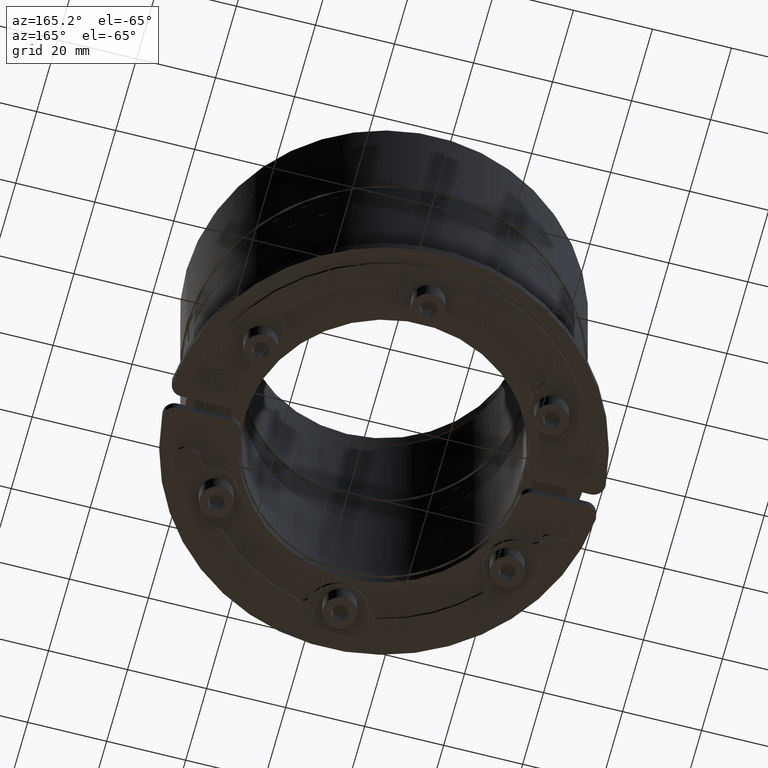
[diagram: clean part render]
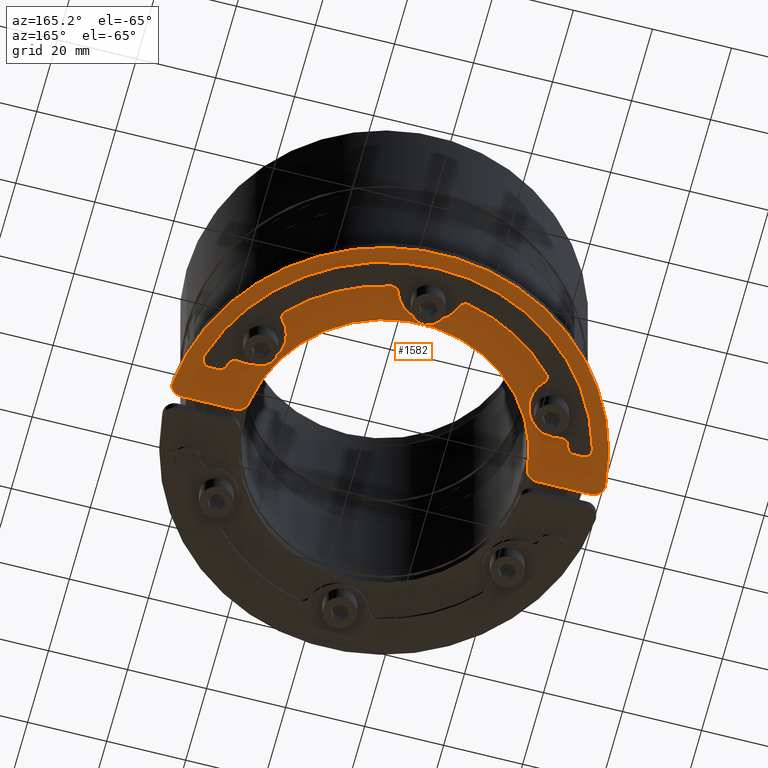
[diagram: same view with one face highlighted and labeled with its STEP entity id]
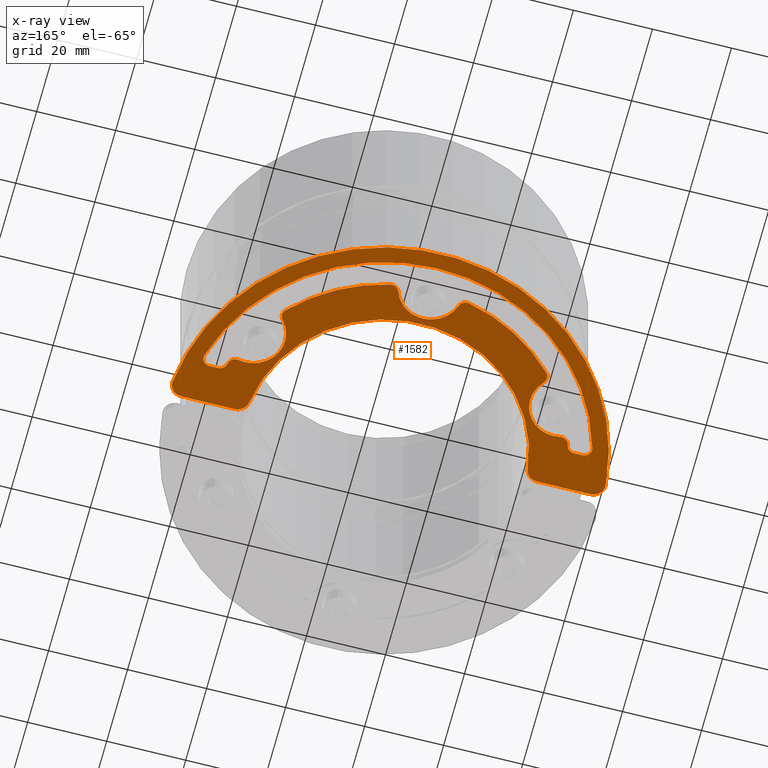
[diagram: x-ray of the same camera — body ghosted, the highlighted face saturated]
A machine part, auxiliary view. The second image highlights one B-rep face of the part: STEP entity #1582.
The next image is the same camera in x-ray: the body ghosted, the highlighted face saturated — about 0% of this face is hidden behind the body in this view.
In plain terms, the highlighted planar face has unit normal (-0, 0, -1).
Its self-contained STEP definition (entity closure, byte-faithful):
#154=CARTESIAN_POINT('',(54.815815396474449,-23.693602599754058,1.250000000000000));
#155=VERTEX_POINT('',#154);
#171=CARTESIAN_POINT('',(54.739501898102901,-23.021250578714820,1.250000000000000));
#172=VERTEX_POINT('',#171);
#179=CARTESIAN_POINT('',(51.815815396474449,-23.693602599754058,1.250000000000000));
#180=DIRECTION('',(0.0,0.0,-1.0));
#181=DIRECTION('',(1.0,0.0,0.0));
#182=AXIS2_PLACEMENT_3D('',#179,#180,#181);
#183=CIRCLE('',#182,3.0);
#184=EDGE_CURVE('',#172,#155,#183,.T.);
#196=CARTESIAN_POINT('',(-33.559449266504188,0.906241157345539,1.250000000000000));
#197=VERTEX_POINT('',#196);
#213=CARTESIAN_POINT('',(-33.042555854753957,-0.435546772205976,1.250000000000000));
#214=VERTEX_POINT('',#213);
#221=CARTESIAN_POINT('',(-31.559449266504188,0.906241157345539,1.250000000000000));
#222=DIRECTION('',(0.0,0.0,1.0));
#223=DIRECTION('',(1.0,0.0,0.0));
#224=AXIS2_PLACEMENT_3D('',#221,#222,#223);
#225=CIRCLE('',#224,2.0);
#226=EDGE_CURVE('',#197,#214,#225,.T.);
#236=CARTESIAN_POINT('',(33.566679514700482,0.885510675763347,1.250000000000000));
#237=VERTEX_POINT('',#236);
#246=CARTESIAN_POINT('',(33.057988268089716,-0.447155149589998,1.250000000000000));
#247=VERTEX_POINT('',#246);
#248=CARTESIAN_POINT('',(31.566679514700482,0.885510675763348,1.250000000000000));
#249=DIRECTION('',(0.0,0.0,1.0));
#250=DIRECTION('',(1.0,0.0,0.0));
#251=AXIS2_PLACEMENT_3D('',#248,#249,#250);
#252=CIRCLE('',#251,2.0);
#253=EDGE_CURVE('',#247,#237,#252,.T.);
#280=CARTESIAN_POINT('',(31.023223281646594,-5.777818451003335,1.250000000000000));
#281=VERTEX_POINT('',#280);
#296=CARTESIAN_POINT('',(39.023223281646594,-5.777818451003336,1.250000000000000));
#297=DIRECTION('',(0.0,0.0,-1.0));
#298=DIRECTION('',(1.0,0.0,0.0));
#299=AXIS2_PLACEMENT_3D('',#296,#297,#298);
#300=CIRCLE('',#299,8.0);
#301=EDGE_CURVE('',#281,#247,#300,.T.);
#311=CARTESIAN_POINT('',(49.157623627878891,-15.017493015787119,1.250000000000000));
#312=VERTEX_POINT('',#311);
#321=CARTESIAN_POINT('',(49.082668463225204,-14.475088755196873,1.250000000000000));
#322=VERTEX_POINT('',#321);
#323=CARTESIAN_POINT('',(47.157623627878891,-15.017493015787119,1.250000000000000));
#324=DIRECTION('',(0.0,0.0,-1.0));
#325=DIRECTION('',(1.0,0.0,0.0));
#326=AXIS2_PLACEMENT_3D('',#323,#324,#325);
#327=CIRCLE('',#326,2.0);
#328=EDGE_CURVE('',#322,#312,#327,.T.);
#355=CARTESIAN_POINT('',(-49.169573304092140,-15.017493015787119,1.250000000000000));
#356=VERTEX_POINT('',#355);
#372=CARTESIAN_POINT('',(-49.094618139438481,-14.475088755196973,1.250000000000000));
#373=VERTEX_POINT('',#372);
#380=CARTESIAN_POINT('',(-47.169573304092140,-15.017493015787119,1.250000000000000));
#381=DIRECTION('',(0.0,0.0,-1.0));
#382=DIRECTION('',(1.0,0.0,0.0));
#383=AXIS2_PLACEMENT_3D('',#380,#381,#382);
#384=CIRCLE('',#383,2.0);
#385=EDGE_CURVE('',#356,#373,#384,.T.);
#395=CARTESIAN_POINT('',(-30.974982207753001,-5.802698490412065,1.250000000000000));
#396=VERTEX_POINT('',#395);
#405=CARTESIAN_POINT('',(-38.974982207753001,-5.802698490412064,1.250000000000000));
#406=DIRECTION('',(0.0,0.0,-1.0));
#407=DIRECTION('',(1.0,0.0,0.0));
#408=AXIS2_PLACEMENT_3D('',#405,#406,#407);
#409=CIRCLE('',#408,8.0);
#410=EDGE_CURVE('',#214,#396,#409,.T.);
#636=CARTESIAN_POINT('',(-40.658343460891373,-13.623586860119966,1.250000000000000));
#637=VERTEX_POINT('',#636);
#644=CARTESIAN_POINT('',(-38.974982207753001,-5.802698490412064,1.250000000000000));
#645=DIRECTION('',(0.0,0.0,-1.0));
#646=DIRECTION('',(1.0,0.0,0.0));
#647=AXIS2_PLACEMENT_3D('',#644,#645,#646);
#648=CIRCLE('',#647,8.0);
#649=EDGE_CURVE('',#396,#637,#648,.T.);
#668=CARTESIAN_POINT('',(-42.989565585157365,-14.986828094519035,1.250000000000000));
#669=VERTEX_POINT('',#668);
#676=CARTESIAN_POINT('',(-41.079183774175974,-15.578808952546945,1.250000000000000));
#677=DIRECTION('',(0.0,0.0,1.0));
#678=DIRECTION('',(1.0,0.0,0.0));
#679=AXIS2_PLACEMENT_3D('',#676,#677,#678);
#680=CIRCLE('',#679,2.0);
#681=EDGE_CURVE('',#637,#669,#680,.T.);
#701=CARTESIAN_POINT('',(-43.169786145983252,-15.582978308742833,1.250000000000000));
#702=VERTEX_POINT('',#701);
#709=CARTESIAN_POINT('',(-0.005974838106637,-28.306397400245991,1.250000000000000));
#710=DIRECTION('',(0.0,0.0,1.0));
#711=DIRECTION('',(1.0,0.0,0.0));
#712=AXIS2_PLACEMENT_3D('',#709,#710,#711);
#713=CIRCLE('',#712,45.000000000000043);
#714=EDGE_CURVE('',#669,#702,#713,.T.);
#734=CARTESIAN_POINT('',(-45.088177759666635,-17.017493015787117,1.250000000000000));
#735=VERTEX_POINT('',#734);
#742=CARTESIAN_POINT('',(-45.088177759666635,-15.017493015787119,1.250000000000000));
#743=DIRECTION('',(0.0,0.0,-1.0));
#744=DIRECTION('',(1.0,0.0,0.0));
#745=AXIS2_PLACEMENT_3D('',#742,#743,#744);
#746=CIRCLE('',#745,2.0);
#747=EDGE_CURVE('',#702,#735,#746,.T.);
#766=CARTESIAN_POINT('',(-47.169573304092140,-17.017493015787117,1.250000000000000));
#767=VERTEX_POINT('',#766);
#774=CARTESIAN_POINT('',(-45.088177759666635,-17.017493015787117,1.250000000000000));
#775=DIRECTION('',(-1.0,0.0,0.0));
#776=VECTOR('',#775,2.081395544425504);
#777=LINE('',#774,#776);
#778=EDGE_CURVE('',#735,#767,#777,.T.);
#790=CARTESIAN_POINT('',(-47.169573304092140,-15.017493015787119,1.250000000000000));
#791=DIRECTION('',(0.0,0.0,-1.0));
#792=DIRECTION('',(1.0,0.0,0.0));
#793=AXIS2_PLACEMENT_3D('',#790,#791,#792);
#794=CIRCLE('',#793,2.0);
#795=EDGE_CURVE('',#767,#356,#794,.T.);
#821=CARTESIAN_POINT('',(-0.005974838106637,-28.306397400245821,1.250000000000000));
#822=DIRECTION('',(0.0,0.0,-1.0));
#823=DIRECTION('',(1.0,0.0,0.0));
#824=AXIS2_PLACEMENT_3D('',#821,#822,#823);
#825=CIRCLE('',#824,51.000000000000014);
#826=EDGE_CURVE('',#373,#322,#825,.T.);
#847=CARTESIAN_POINT('',(47.157623627878891,-17.017493015787117,1.250000000000000));
#848=VERTEX_POINT('',#847);
#855=CARTESIAN_POINT('',(47.157623627878891,-15.017493015787119,1.250000000000000));
#856=DIRECTION('',(0.0,0.0,-1.0));
#857=DIRECTION('',(1.0,0.0,0.0));
#858=AXIS2_PLACEMENT_3D('',#855,#856,#857);
#859=CIRCLE('',#858,2.0);
#860=EDGE_CURVE('',#312,#848,#859,.T.);
#878=CARTESIAN_POINT('',(45.076228083453387,-17.017493015787117,1.250000000000000));
#879=VERTEX_POINT('',#878);
#886=CARTESIAN_POINT('',(47.157623627878891,-17.017493015787117,1.250000000000000));
#887=DIRECTION('',(-1.0,0.0,0.0));
#888=VECTOR('',#887,2.081395544425504);
#889=LINE('',#886,#888);
#890=EDGE_CURVE('',#848,#879,#889,.T.);
#910=CARTESIAN_POINT('',(43.157836469769975,-15.582978308742819,1.250000000000000));
#911=VERTEX_POINT('',#910);
#918=CARTESIAN_POINT('',(45.076228083453387,-15.017493015787119,1.250000000000000));
#919=DIRECTION('',(0.0,0.0,-1.0));
#920=DIRECTION('',(1.0,0.0,0.0));
#921=AXIS2_PLACEMENT_3D('',#918,#919,#920);
#922=CIRCLE('',#921,2.0);
#923=EDGE_CURVE('',#879,#911,#922,.T.);
#943=CARTESIAN_POINT('',(42.973923021044627,-14.974916611641456,1.250000000000000));
#944=VERTEX_POINT('',#943);
#951=CARTESIAN_POINT('',(-0.005974838106637,-28.306397400245821,1.250000000000000));
#952=DIRECTION('',(0.0,0.0,1.0));
#953=DIRECTION('',(1.0,0.0,0.0));
#954=AXIS2_PLACEMENT_3D('',#951,#952,#953);
#955=CIRCLE('',#954,45.000000000000043);
#956=EDGE_CURVE('',#911,#944,#955,.T.);
#976=CARTESIAN_POINT('',(40.655608927061834,-13.609505185330898,1.250000000000000));
#977=VERTEX_POINT('',#976);
#984=CARTESIAN_POINT('',(41.063705338415659,-15.567426868912770,1.250000000000000));
#985=DIRECTION('',(0.0,0.0,1.0));
#986=DIRECTION('',(1.0,0.0,0.0));
#987=AXIS2_PLACEMENT_3D('',#984,#985,#986);
#988=CIRCLE('',#987,2.0);
#989=EDGE_CURVE('',#944,#977,#988,.T.);
#1001=CARTESIAN_POINT('',(39.023223281646594,-5.777818451003336,1.250000000000000));
#1002=DIRECTION('',(0.0,0.0,-1.0));
#1003=DIRECTION('',(1.0,0.0,0.0));
#1004=AXIS2_PLACEMENT_3D('',#1001,#1002,#1003);
#1005=CIRCLE('',#1004,8.0);
#1006=EDGE_CURVE('',#977,#281,#1005,.T.);
#1034=CARTESIAN_POINT('',(33.035175065993812,2.243273842089328,1.250000000000000));
#1035=VERTEX_POINT('',#1034);
#1042=CARTESIAN_POINT('',(31.566679514700482,0.885510675763348,1.250000000000000));
#1043=DIRECTION('',(0.0,0.0,1.0));
#1044=DIRECTION('',(1.0,0.0,0.0));
#1045=AXIS2_PLACEMENT_3D('',#1042,#1043,#1044);
#1046=CIRCLE('',#1045,2.0);
#1047=EDGE_CURVE('',#237,#1035,#1046,.T.);
#1066=CARTESIAN_POINT('',(9.959065742618479,15.576377879179011,1.250000000000000));
#1067=VERTEX_POINT('',#1066);
#1074=CARTESIAN_POINT('',(-0.005974838106637,-28.306397400245935,1.250000000000000));
#1075=DIRECTION('',(0.0,0.0,1.0));
#1076=DIRECTION('',(1.0,0.0,0.0));
#1077=AXIS2_PLACEMENT_3D('',#1074,#1075,#1076);
#1078=CIRCLE('',#1077,45.000000000000043);
#1079=EDGE_CURVE('',#1035,#1067,#1078,.T.);
#1099=CARTESIAN_POINT('',(7.612599322533997,14.239546328373200,1.250000000000000));
#1100=VERTEX_POINT('',#1099);
#1107=CARTESIAN_POINT('',(9.516175050141827,13.626032311204574,1.250000000000000));
#1108=DIRECTION('',(0.0,0.0,1.0));
#1109=DIRECTION('',(1.0,0.0,0.0));
#1110=AXIS2_PLACEMENT_3D('',#1107,#1108,#1109);
#1111=CIRCLE('',#1110,2.0);
#1112=EDGE_CURVE('',#1067,#1100,#1111,.T.);
#1132=CARTESIAN_POINT('',(-7.616472222795819,14.240991821158081,1.250000000000000));
#1133=VERTEX_POINT('',#1132);
#1140=CARTESIAN_POINT('',(-0.001703587897266,16.693602397047677,1.250000000000000));
#1141=DIRECTION('',(0.0,0.0,-1.0));
#1142=DIRECTION('',(1.0,0.0,0.0));
#1143=AXIS2_PLACEMENT_3D('',#1140,#1141,#1142);
#1144=CIRCLE('',#1143,8.0);
#1145=EDGE_CURVE('',#1100,#1133,#1144,.T.);
#1165=CARTESIAN_POINT('',(-9.962684825400187,15.578268785438359,1.250000000000000));
#1166=VERTEX_POINT('',#1165);
#1173=CARTESIAN_POINT('',(-9.520164381520443,13.627839177185683,1.250000000000000));
#1174=DIRECTION('',(0.0,0.0,1.0));
#1175=DIRECTION('',(1.0,0.0,0.0));
#1176=AXIS2_PLACEMENT_3D('',#1173,#1174,#1175);
#1177=CIRCLE('',#1176,2.0);
#1178=EDGE_CURVE('',#1133,#1166,#1177,.T.);
#1198=CARTESIAN_POINT('',(-33.027052728290116,2.264968532117228,1.250000000000000));
#1199=VERTEX_POINT('',#1198);
#1206=CARTESIAN_POINT('',(-0.005974838106637,-28.306397400245821,1.250000000000000));
#1207=DIRECTION('',(0.0,0.0,1.0));
#1208=DIRECTION('',(1.0,0.0,0.0));
#1209=AXIS2_PLACEMENT_3D('',#1206,#1207,#1208);
#1210=CIRCLE('',#1209,45.000000000000043);
#1211=EDGE_CURVE('',#1166,#1199,#1210,.T.);
#1223=CARTESIAN_POINT('',(-31.559449266504188,0.906241157345539,1.250000000000000));
#1224=DIRECTION('',(0.0,0.0,1.0));
#1225=DIRECTION('',(1.0,0.0,0.0));
#1226=AXIS2_PLACEMENT_3D('',#1223,#1224,#1225);
#1227=CIRCLE('',#1226,2.0);
#1228=EDGE_CURVE('',#1199,#197,#1227,.T.);
#1293=CARTESIAN_POINT('',(51.815815396474449,-26.693602599754058,1.250000000000000));
#1294=VERTEX_POINT('',#1293);
#1295=CARTESIAN_POINT('',(51.815815396474449,-23.693602599754058,1.250000000000000));
#1296=DIRECTION('',(0.0,0.0,-1.0));
#1297=DIRECTION('',(1.0,0.0,0.0));
#1298=AXIS2_PLACEMENT_3D('',#1295,#1296,#1297);
#1299=CIRCLE('',#1298,3.0);
#1300=EDGE_CURVE('',#155,#1294,#1299,.T.);
#1325=CARTESIAN_POINT('',(38.216690219795282,-26.693602599754051,1.250000000000000));
#1326=VERTEX_POINT('',#1325);
#1327=CARTESIAN_POINT('',(51.815815396474449,-26.693602599754058,1.250000000000000));
#1328=DIRECTION('',(-1.0,0.0,0.0));
#1329=VECTOR('',#1328,13.599125176679166);
#1330=LINE('',#1327,#1329);
#1331=EDGE_CURVE('',#1294,#1326,#1330,.T.);
#1356=CARTESIAN_POINT('',(35.238300734763953,-24.053041155636521,1.250000000000000));
#1357=VERTEX_POINT('',#1356);
#1358=CARTESIAN_POINT('',(38.216690219795282,-23.693602599754065,1.250000000000000));
#1359=DIRECTION('',(0.0,0.0,-1.0));
#1360=DIRECTION('',(1.0,0.0,0.0));
#1361=AXIS2_PLACEMENT_3D('',#1358,#1359,#1360);
#1362=CIRCLE('',#1361,3.0);
#1363=EDGE_CURVE('',#1326,#1357,#1362,.T.);
#1389=CARTESIAN_POINT('',(-35.250250410977173,-24.053041155636549,1.250000000000000));
#1390=VERTEX_POINT('',#1389);
#1391=CARTESIAN_POINT('',(-0.005974838106624,-28.306397400245942,1.250000000000000));
#1392=DIRECTION('',(0.0,0.0,1.0));
#1393=DIRECTION('',(1.0,0.0,0.0));
#1394=AXIS2_PLACEMENT_3D('',#1391,#1392,#1393);
#1395=CIRCLE('',#1394,35.500000000000000);
#1396=EDGE_CURVE('',#1357,#1390,#1395,.T.);
#1422=CARTESIAN_POINT('',(-38.228639896008531,-26.693602599754058,1.250000000000000));
#1423=VERTEX_POINT('',#1422);
#1424=CARTESIAN_POINT('',(-38.228639896008531,-23.693602599754058,1.250000000000000));
#1425=DIRECTION('',(0.0,0.0,-1.0));
#1426=DIRECTION('',(1.0,0.0,0.0));
#1427=AXIS2_PLACEMENT_3D('',#1424,#1425,#1426);
#1428=CIRCLE('',#1427,3.0);
#1429=EDGE_CURVE('',#1390,#1423,#1428,.T.);
#1455=CARTESIAN_POINT('',(-51.816126166934623,-26.693602599754065,1.250000000000000));
#1456=VERTEX_POINT('',#1455);
#1457=CARTESIAN_POINT('',(-38.228639896008531,-26.693602599754058,1.250000000000000));
#1458=DIRECTION('',(-1.0,0.0,0.0));
#1459=VECTOR('',#1458,13.587486270926092);
#1460=LINE('',#1457,#1459);
#1461=EDGE_CURVE('',#1423,#1456,#1460,.T.);
#1486=CARTESIAN_POINT('',(-54.815815396474477,-23.736782759348699,1.250000000000000));
#1487=VERTEX_POINT('',#1486);
#1488=CARTESIAN_POINT('',(-51.816126166934623,-23.693602599754065,1.250000000000000));
#1489=DIRECTION('',(0.0,0.0,-1.0));
#1490=DIRECTION('',(1.0,0.0,0.0));
#1491=AXIS2_PLACEMENT_3D('',#1488,#1489,#1490);
#1492=CIRCLE('',#1491,3.0);
#1493=EDGE_CURVE('',#1456,#1487,#1492,.T.);
#1519=CARTESIAN_POINT('',(-0.005974838106681,-28.306397400245579,1.250000000000000));
#1520=DIRECTION('',(0.0,0.0,-1.0));
#1521=DIRECTION('',(1.0,0.0,0.0));
#1522=AXIS2_PLACEMENT_3D('',#1519,#1520,#1521);
#1523=CIRCLE('',#1522,55.0);
#1524=EDGE_CURVE('',#1487,#172,#1523,.T.);
#1538=CARTESIAN_POINT('',(0.007060669662779,-2.959693082385693,1.250000000000000));
#1539=DIRECTION('',(0.0,0.0,1.0));
#1540=DIRECTION('',(1.0,0.0,0.0));
#1541=AXIS2_PLACEMENT_3D('',#1538,#1539,#1540);
#1542=PLANE('',#1541);
#1543=ORIENTED_EDGE('',*,*,#184,.F.);
#1544=ORIENTED_EDGE('',*,*,#1524,.F.);
#1545=ORIENTED_EDGE('',*,*,#1493,.F.);
#1546=ORIENTED_EDGE('',*,*,#1461,.F.);
#1547=ORIENTED_EDGE('',*,*,#1429,.F.);
#1548=ORIENTED_EDGE('',*,*,#1396,.F.);
#1549=ORIENTED_EDGE('',*,*,#1363,.F.);
#1550=ORIENTED_EDGE('',*,*,#1331,.F.);
#1551=ORIENTED_EDGE('',*,*,#1300,.F.);
#1552=EDGE_LOOP('',(#1543,#1544,#1545,#1546,#1547,#1548,#1549,#1550,#1551));
#1553=FACE_OUTER_BOUND('',#1552,.T.);
#1554=ORIENTED_EDGE('',*,*,#410,.T.);
#1555=ORIENTED_EDGE('',*,*,#649,.T.);
#1556=ORIENTED_EDGE('',*,*,#681,.T.);
#1557=ORIENTED_EDGE('',*,*,#714,.T.);
#1558=ORIENTED_EDGE('',*,*,#747,.T.);
#1559=ORIENTED_EDGE('',*,*,#778,.T.);
#1560=ORIENTED_EDGE('',*,*,#795,.T.);
#1561=ORIENTED_EDGE('',*,*,#385,.T.);
#1562=ORIENTED_EDGE('',*,*,#826,.T.);
#1563=ORIENTED_EDGE('',*,*,#328,.T.);
#1564=ORIENTED_EDGE('',*,*,#860,.T.);
#1565=ORIENTED_EDGE('',*,*,#890,.T.);
#1566=ORIENTED_EDGE('',*,*,#923,.T.);
#1567=ORIENTED_EDGE('',*,*,#956,.T.);
#1568=ORIENTED_EDGE('',*,*,#989,.T.);
#1569=ORIENTED_EDGE('',*,*,#1006,.T.);
#1570=ORIENTED_EDGE('',*,*,#301,.T.);
#1571=ORIENTED_EDGE('',*,*,#253,.T.);
#1572=ORIENTED_EDGE('',*,*,#1047,.T.);
#1573=ORIENTED_EDGE('',*,*,#1079,.T.);
#1574=ORIENTED_EDGE('',*,*,#1112,.T.);
#1575=ORIENTED_EDGE('',*,*,#1145,.T.);
#1576=ORIENTED_EDGE('',*,*,#1178,.T.);
#1577=ORIENTED_EDGE('',*,*,#1211,.T.);
#1578=ORIENTED_EDGE('',*,*,#1228,.T.);
#1579=ORIENTED_EDGE('',*,*,#226,.T.);
#1580=EDGE_LOOP('',(#1554,#1555,#1556,#1557,#1558,#1559,#1560,#1561,#1562,#1563,#1564,#1565,#1566,#1567,#1568,#1569,#1570,#1571,#1572,#1573,#1574,#1575,#1576,#1577,#1578,#1579));
#1581=FACE_BOUND('',#1580,.T.);
#1582=ADVANCED_FACE('',(#1553,#1581),#1542,.T.);